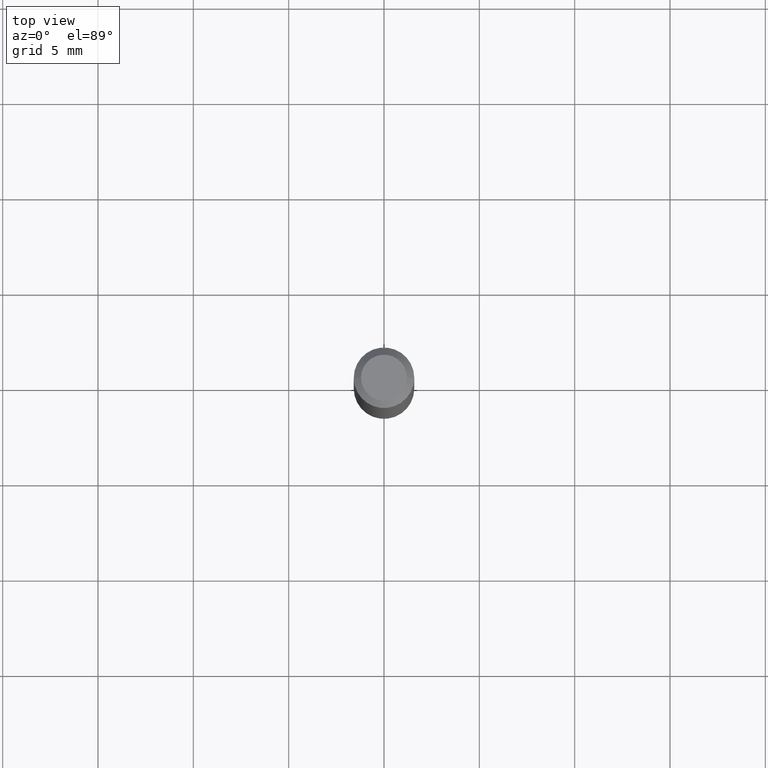
[diagram: clean part render]
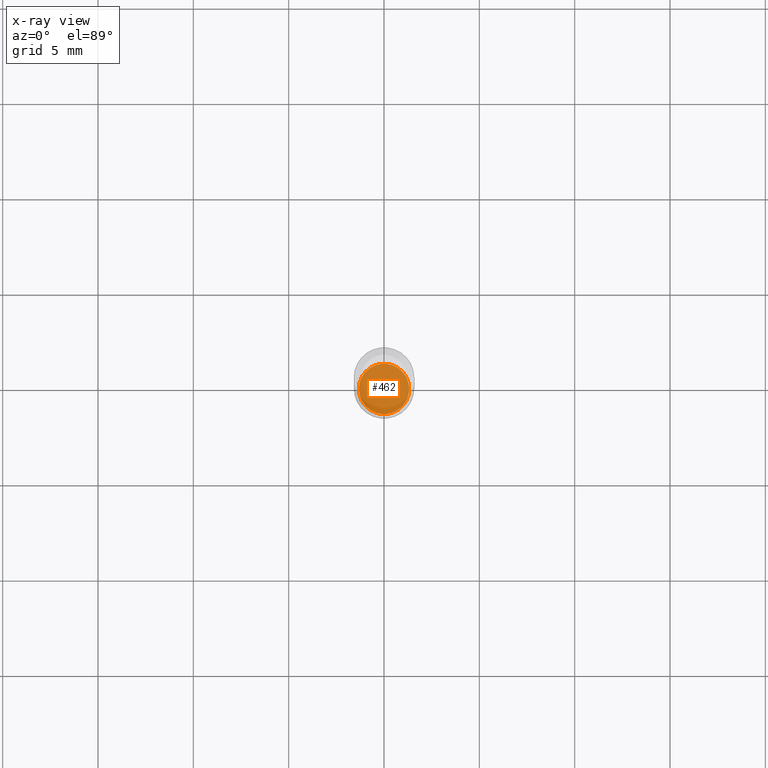
[diagram: x-ray — body ghosted, one internal face saturated and labeled with its STEP entity id]
A machine part, top view, then the same camera in x-ray: the body is ghosted and one INTERNAL B-rep face — a face not visible from any outside direction — is saturated and labeled: STEP entity #462.
In plain terms, the highlighted planar face has unit normal (-0, 0, 1).
Its self-contained STEP definition (entity closure, byte-faithful):
#11 = DIRECTION ( 'NONE',  ( -2.445468806185136597E-29, 3.491481338843145583E-15, 1.000000000000000000 ) ) ;
#15 = CIRCLE ( 'NONE', #378, 0.05199999999999999067 ) ;
#29 = CARTESIAN_POINT ( 'NONE',  ( 3.281819137900453057E-29, -4.685567956727500961E-15, -1.342000000000000082 ) ) ;
#30 = EDGE_CURVE ( 'NONE', #112, #270, #57, .T. ) ;
#53 = EDGE_LOOP ( 'NONE', ( #326, #299 ) ) ;
#57 = CIRCLE ( 'NONE', #398, 0.05199999999999999067 ) ;
#60 = FACE_OUTER_BOUND ( 'NONE', #53, .T. ) ;
#93 = DIRECTION ( 'NONE',  ( -2.445468806185136597E-29, 3.491481338843145583E-15, 1.000000000000000000 ) ) ;
#100 = DIRECTION ( 'NONE',  ( -2.438088387897960049E-29, 3.491481338843145188E-15, 1.000000000000000000 ) ) ;
#112 = VERTEX_POINT ( 'NONE', #303 ) ;
#163 = CARTESIAN_POINT ( 'NONE',  ( 3.281819137900453057E-29, -4.685567956727500961E-15, -1.342000000000000082 ) ) ;
#199 = AXIS2_PLACEMENT_3D ( 'NONE', #29, #100, #395 ) ;
#234 = CARTESIAN_POINT ( 'NONE',  ( 3.281819137900453057E-29, -4.685567956727500961E-15, -1.342000000000000082 ) ) ;
#249 = CARTESIAN_POINT ( 'NONE',  ( 0.05199999999999999067, -5.048682015967186325E-15, -1.342000000000000082 ) ) ;
#270 = VERTEX_POINT ( 'NONE', #249 ) ;
#299 = ORIENTED_EDGE ( 'NONE', *, *, #30, .F. ) ;
#303 = CARTESIAN_POINT ( 'NONE',  ( -0.05199999999999999067, -4.313436506958138124E-15, -1.342000000000000082 ) ) ;
#326 = ORIENTED_EDGE ( 'NONE', *, *, #415, .F. ) ;
#345 = PLANE ( 'NONE',  #199 ) ;
#372 = DIRECTION ( 'NONE',  ( 1.000000000000000000, -6.982962677686258822E-15, 0.000000000000000000 ) ) ;
#378 = AXIS2_PLACEMENT_3D ( 'NONE', #234, #11, #372 ) ;
#379 = DIRECTION ( 'NONE',  ( 1.000000000000000000, -6.982962677686258822E-15, 0.000000000000000000 ) ) ;
#395 = DIRECTION ( 'NONE',  ( 1.000000000000000000, -6.982962677686265922E-15, 4.876176775795935793E-29 ) ) ;
#398 = AXIS2_PLACEMENT_3D ( 'NONE', #163, #93, #379 ) ;
#415 = EDGE_CURVE ( 'NONE', #270, #112, #15, .T. ) ;
#462 = ADVANCED_FACE ( 'NONE', ( #60 ), #345, .F. ) ;